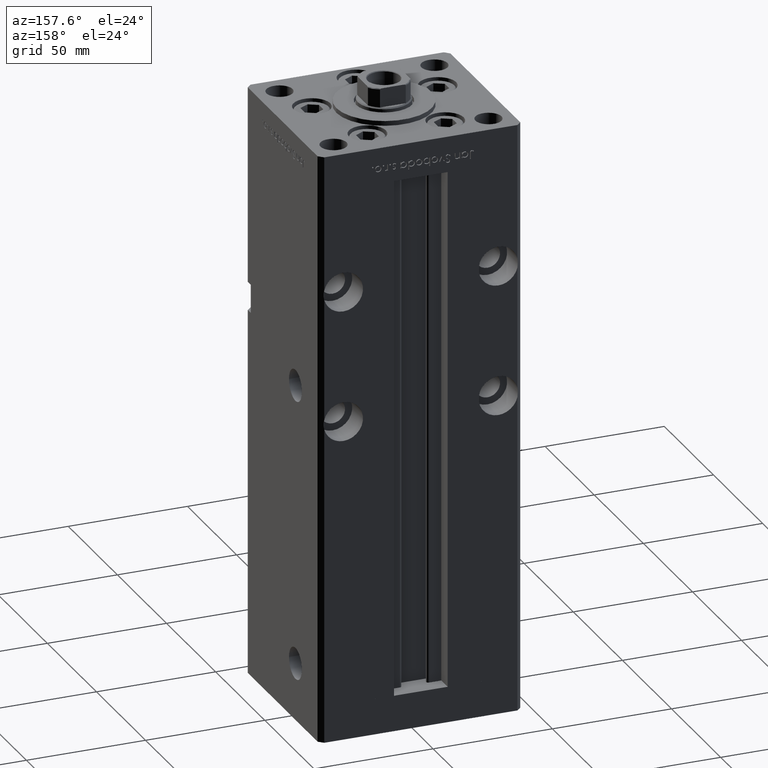
[diagram: clean part render]
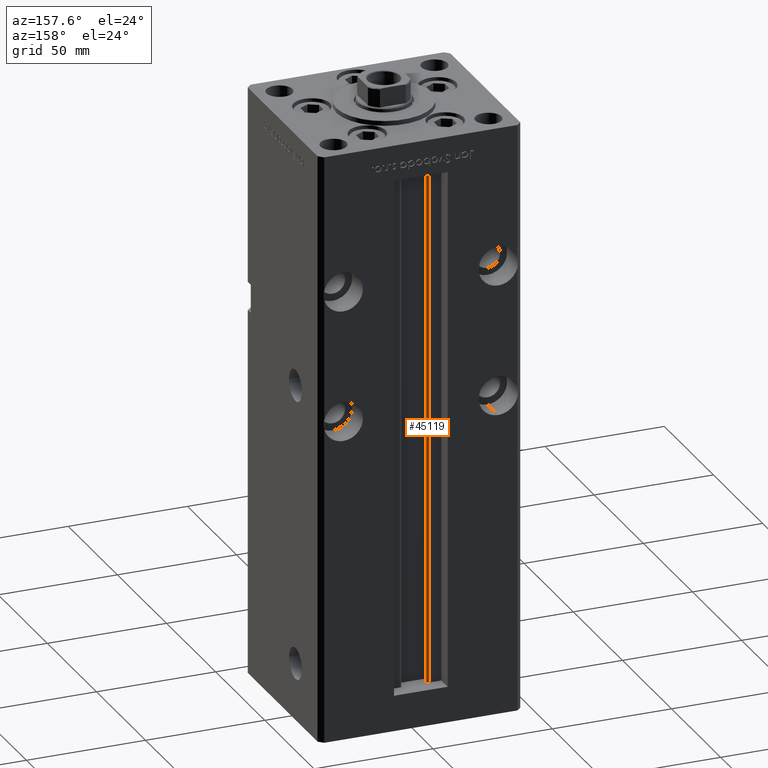
[diagram: same view with one face highlighted and labeled with its STEP entity id]
A machine part, auxiliary view. The second image highlights one B-rep face of the part: STEP entity #45119.
In plain terms, the highlighted cylindrical surface (edge-blend (fillet) strip) has radius 0.9333 mm, axis along (0, 0, 1).
Its self-contained STEP definition (entity closure, byte-faithful):
#2704 = EDGE_CURVE ( 'NONE', #5528, #11642, #27806, .T. ) ;
#5528 = VERTEX_POINT ( 'NONE', #12726 ) ;
#5548 = VERTEX_POINT ( 'NONE', #24049 ) ;
#6332 = ORIENTED_EDGE ( 'NONE', *, *, #34987, .F. ) ;
#6489 = CARTESIAN_POINT ( 'NONE',  ( -6.183333333333997928, 31.00000000000000000, 0.000000000000000000 ) ) ;
#11642 = VERTEX_POINT ( 'NONE', #11740 ) ;
#11740 = CARTESIAN_POINT ( 'NONE',  ( -5.249999999999996447, 30.06666666666599852, 218.5000000000000000 ) ) ;
#12726 = CARTESIAN_POINT ( 'NONE',  ( -6.183333333333997928, 31.00000000000000000, 218.5000000000000000 ) ) ;
#13451 = VECTOR ( 'NONE', #29292, 1000.000000000000000 ) ;
#13712 = DIRECTION ( 'NONE',  ( -0.000000000000000000, -0.000000000000000000, -1.000000000000000000 ) ) ;
#14349 = EDGE_CURVE ( 'NONE', #34917, #5548, #39203, .T. ) ;
#15670 = CARTESIAN_POINT ( 'NONE',  ( -6.183333333333997928, 30.06666666666599852, 0.000000000000000000 ) ) ;
#18777 = DIRECTION ( 'NONE',  ( 0.000000000000000000, 0.000000000000000000, -1.000000000000000000 ) ) ;
#18917 = ORIENTED_EDGE ( 'NONE', *, *, #14349, .F. ) ;
#19411 = ORIENTED_EDGE ( 'NONE', *, *, #39777, .T. ) ;
#19920 = LINE ( 'NONE', #48714, #30465 ) ;
#24049 = CARTESIAN_POINT ( 'NONE',  ( -5.249999999999996447, 30.06666666666599852, 0.000000000000000000 ) ) ;
#24268 = FACE_OUTER_BOUND ( 'NONE', #39458, .T. ) ;
#26059 = LINE ( 'NONE', #33339, #13451 ) ;
#27715 = DIRECTION ( 'NONE',  ( -0.000000000000000000, -0.000000000000000000, 1.000000000000000000 ) ) ;
#27806 = CIRCLE ( 'NONE', #44174, 0.9333333333340008142 ) ;
#28046 = CYLINDRICAL_SURFACE ( 'NONE', #45370, 0.9333333333340008142 ) ;
#28565 = DIRECTION ( 'NONE',  ( 1.000000000000000000, 0.000000000000000000, 0.000000000000000000 ) ) ;
#29292 = DIRECTION ( 'NONE',  ( -0.000000000000000000, -0.000000000000000000, 1.000000000000000000 ) ) ;
#30113 = DIRECTION ( 'NONE',  ( 1.000000000000000000, 0.000000000000000000, 0.000000000000000000 ) ) ;
#30465 = VECTOR ( 'NONE', #27715, 1000.000000000000000 ) ;
#32067 = DIRECTION ( 'NONE',  ( -0.000000000000000000, -0.000000000000000000, 1.000000000000000000 ) ) ;
#33339 = CARTESIAN_POINT ( 'NONE',  ( -6.183333333333997928, 31.00000000000000000, 0.000000000000000000 ) ) ;
#34917 = VERTEX_POINT ( 'NONE', #6489 ) ;
#34987 = EDGE_CURVE ( 'NONE', #5548, #11642, #19920, .T. ) ;
#35177 = DIRECTION ( 'NONE',  ( 1.000000000000000000, 0.000000000000000000, 0.000000000000000000 ) ) ;
#38712 = CARTESIAN_POINT ( 'NONE',  ( -6.183333333333997928, 30.06666666666599852, 0.000000000000000000 ) ) ;
#39203 = CIRCLE ( 'NONE', #46088, 0.9333333333340008142 ) ;
#39205 = CARTESIAN_POINT ( 'NONE',  ( -6.183333333333997928, 30.06666666666599852, 218.5000000000000000 ) ) ;
#39458 = EDGE_LOOP ( 'NONE', ( #6332, #18917, #19411, #52231 ) ) ;
#39777 = EDGE_CURVE ( 'NONE', #34917, #5528, #26059, .T. ) ;
#44174 = AXIS2_PLACEMENT_3D ( 'NONE', #39205, #18777, #35177 ) ;
#45119 = ADVANCED_FACE ( 'NONE', ( #24268 ), #28046, .T. ) ;
#45370 = AXIS2_PLACEMENT_3D ( 'NONE', #15670, #32067, #28565 ) ;
#46088 = AXIS2_PLACEMENT_3D ( 'NONE', #38712, #13712, #30113 ) ;
#48714 = CARTESIAN_POINT ( 'NONE',  ( -5.249999999999996447, 30.06666666666599852, 0.000000000000000000 ) ) ;
#52231 = ORIENTED_EDGE ( 'NONE', *, *, #2704, .T. ) ;